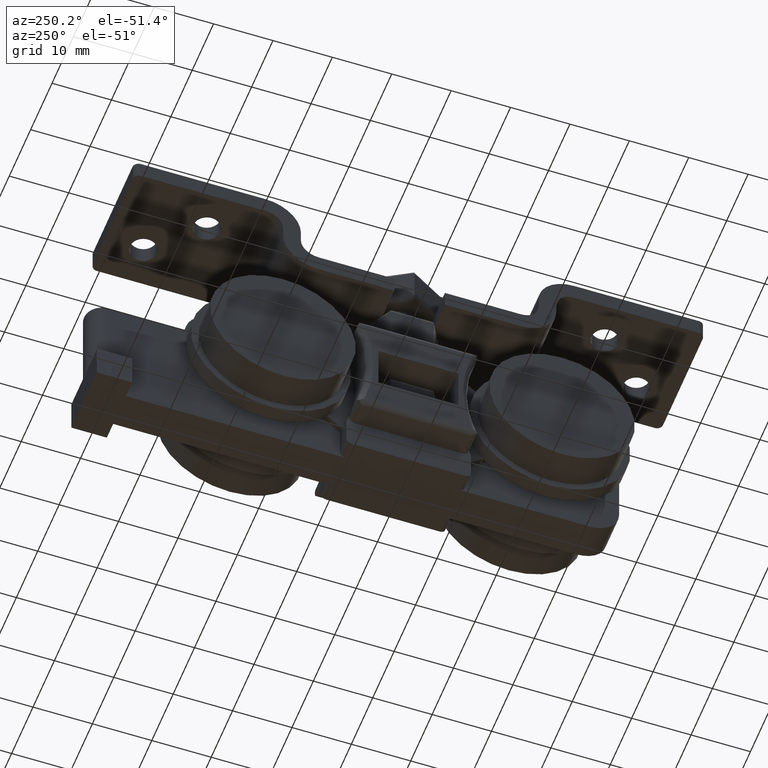
[diagram: clean part render]
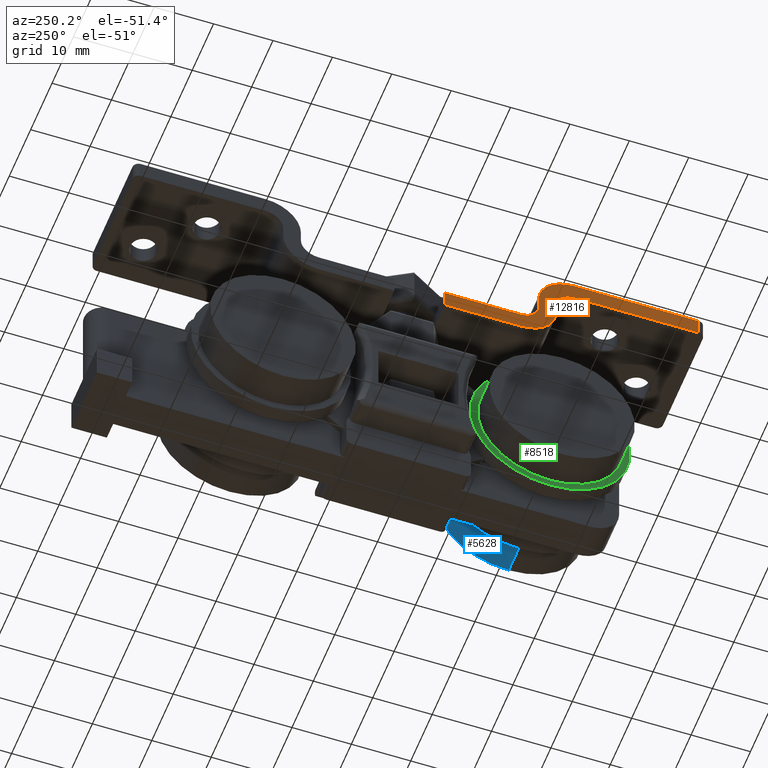
[diagram: same view with three faces highlighted in distinct colors, each labeled with its STEP entity id]
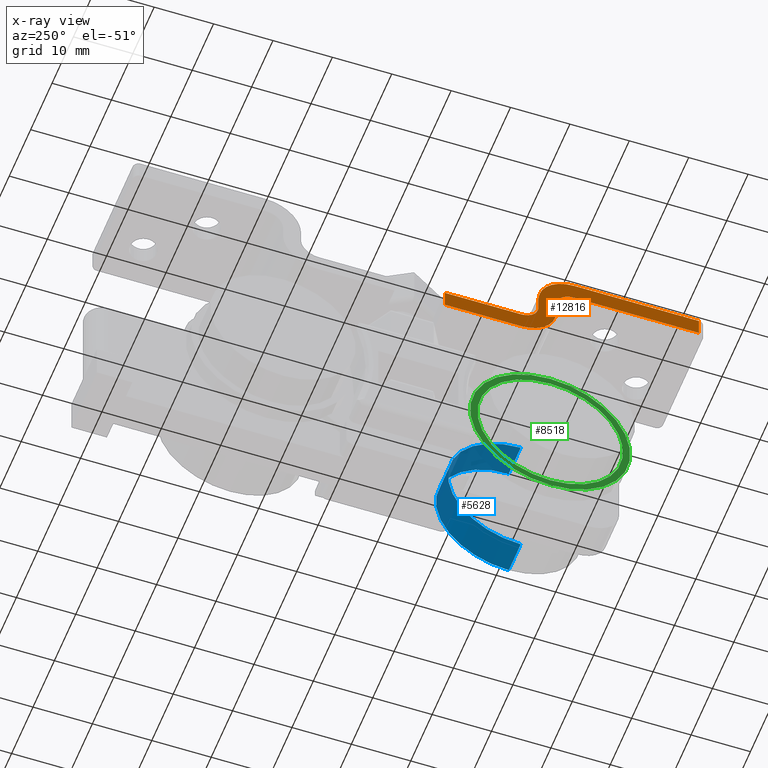
[diagram: x-ray of the same camera — body ghosted, the three highlighted faces saturated]
A machine part, auxiliary view with three faces highlighted in distinct colors.
The next image is the same camera in x-ray (body ghosted, the three faces saturated) — at least one of them is partly hidden behind the body in this view.
Their STEP definitions:

[orange] entity #12816 — the highlighted planar face has unit normal (-1, 0, 0).
#12709=CARTESIAN_POINT('',(-9.750000000000025,-2.112499999999983,51.700000000000017));
#12710=DIRECTION('',(-1.0,0.0,0.0));
#12711=DIRECTION('',(0.0,0.0,-1.0));
#12712=AXIS2_PLACEMENT_3D('',#12709,#12710,#12711);
#12713=PLANE('',#12712);
#12714=CARTESIAN_POINT('',(-9.750000000000025,-25.999999999999979,48.000000000000014));
#12715=VERTEX_POINT('',#12714);
#12716=CARTESIAN_POINT('',(-9.750000000000025,-46.999999999999979,48.000000000000014));
#12717=VERTEX_POINT('',#12716);
#12718=CARTESIAN_POINT('',(-9.750000000000025,-25.999999999999979,48.000000000000014));
#12719=DIRECTION('',(0.0,-1.0,0.0));
#12720=VECTOR('',#12719,21.0);
#12721=LINE('',#12718,#12720);
#12722=EDGE_CURVE('',#12715,#12717,#12721,.T.);
#12723=ORIENTED_EDGE('',*,*,#12722,.T.);
#12724=CARTESIAN_POINT('',(-9.750000000000025,-46.999999999999979,51.000000000000014));
#12725=VERTEX_POINT('',#12724);
#12726=CARTESIAN_POINT('',(-9.750000000000025,-46.999999999999979,48.000000000000014));
#12727=DIRECTION('',(0.0,0.0,1.0));
#12728=VECTOR('',#12727,3.0);
#12729=LINE('',#12726,#12728);
#12730=EDGE_CURVE('',#12717,#12725,#12729,.T.);
#12731=ORIENTED_EDGE('',*,*,#12730,.T.);
#12732=CARTESIAN_POINT('',(-9.750000000000025,-25.999999999999979,51.000000000000014));
#12733=VERTEX_POINT('',#12732);
#12734=CARTESIAN_POINT('',(-9.750000000000025,-25.999999999999979,51.000000000000014));
#12735=DIRECTION('',(0.0,-1.0,0.0));
#12736=VECTOR('',#12735,21.0);
#12737=LINE('',#12734,#12736);
#12738=EDGE_CURVE('',#12733,#12725,#12737,.T.);
#12739=ORIENTED_EDGE('',*,*,#12738,.F.);
#12740=CARTESIAN_POINT('',(-9.750000000000025,-19.999999999999986,45.000000000000014));
#12741=VERTEX_POINT('',#12740);
#12742=CARTESIAN_POINT('',(-9.750000000000025,-25.999999999999979,45.000000000000014));
#12743=DIRECTION('',(-1.0,0.0,-6.123234E-017));
#12744=DIRECTION('',(0.0,-1.0,0.0));
#12745=AXIS2_PLACEMENT_3D('',#12742,#12743,#12744);
#12746=CIRCLE('',#12745,5.999999999999998);
#12747=EDGE_CURVE('',#12733,#12741,#12746,.T.);
#12748=ORIENTED_EDGE('',*,*,#12747,.T.);
#12749=CARTESIAN_POINT('',(-9.750000000000025,-19.999999999999986,43.000000000000014));
#12750=VERTEX_POINT('',#12749);
#12751=CARTESIAN_POINT('',(-9.750000000000025,-19.999999999999986,45.000000000000014));
#12752=DIRECTION('',(0.0,0.0,-1.0));
#12753=VECTOR('',#12752,2.0);
#12754=LINE('',#12751,#12753);
#12755=EDGE_CURVE('',#12741,#12750,#12754,.T.);
#12756=ORIENTED_EDGE('',*,*,#12755,.T.);
#12757=CARTESIAN_POINT('',(-9.750000000000025,-16.999999999999989,40.000000000000014));
#12758=VERTEX_POINT('',#12757);
#12759=CARTESIAN_POINT('',(-9.750000000000025,-16.999999999999989,43.000000000000014));
#12760=DIRECTION('',(1.0,0.0,6.123234E-017));
#12761=DIRECTION('',(0.0,-1.0,0.0));
#12762=AXIS2_PLACEMENT_3D('',#12759,#12760,#12761);
#12763=CIRCLE('',#12762,3.000000000000002);
#12764=EDGE_CURVE('',#12750,#12758,#12763,.T.);
#12765=ORIENTED_EDGE('',*,*,#12764,.T.);
#12766=CARTESIAN_POINT('',(-9.750000000000025,-4.249999999999986,40.000000000000014));
#12767=VERTEX_POINT('',#12766);
#12768=CARTESIAN_POINT('',(-9.750000000000025,-16.999999999999989,40.000000000000014));
#12769=DIRECTION('',(0.0,1.0,0.0));
#12770=VECTOR('',#12769,12.750000000000004);
#12771=LINE('',#12768,#12770);
#12772=EDGE_CURVE('',#12758,#12767,#12771,.T.);
#12773=ORIENTED_EDGE('',*,*,#12772,.T.);
#12774=CARTESIAN_POINT('',(-9.750000000000025,-4.249999999999986,37.000000000000021));
#12775=VERTEX_POINT('',#12774);
#12776=CARTESIAN_POINT('',(-9.750000000000025,-4.249999999999986,37.000000000000021));
#12777=DIRECTION('',(0.0,0.0,1.0));
#12778=VECTOR('',#12777,2.999999999999993);
#12779=LINE('',#12776,#12778);
#12780=EDGE_CURVE('',#12775,#12767,#12779,.T.);
#12781=ORIENTED_EDGE('',*,*,#12780,.F.);
#12782=CARTESIAN_POINT('',(-9.750000000000025,-16.999999999999989,37.000000000000021));
#12783=VERTEX_POINT('',#12782);
#12784=CARTESIAN_POINT('',(-9.750000000000025,-16.999999999999989,37.000000000000021));
#12785=DIRECTION('',(0.0,1.0,0.0));
#12786=VECTOR('',#12785,12.750000000000004);
#12787=LINE('',#12784,#12786);
#12788=EDGE_CURVE('',#12783,#12775,#12787,.T.);
#12789=ORIENTED_EDGE('',*,*,#12788,.F.);
#12790=CARTESIAN_POINT('',(-9.750000000000025,-22.999999999999986,43.000000000000014));
#12791=VERTEX_POINT('',#12790);
#12792=CARTESIAN_POINT('',(-9.750000000000025,-16.999999999999989,43.000000000000014));
#12793=DIRECTION('',(1.0,0.0,6.123234E-017));
#12794=DIRECTION('',(-6.123234E-017,0.0,1.0));
#12795=AXIS2_PLACEMENT_3D('',#12792,#12793,#12794);
#12796=CIRCLE('',#12795,6.0);
#12797=EDGE_CURVE('',#12791,#12783,#12796,.T.);
#12798=ORIENTED_EDGE('',*,*,#12797,.F.);
#12799=CARTESIAN_POINT('',(-9.750000000000025,-22.999999999999986,45.000000000000014));
#12800=VERTEX_POINT('',#12799);
#12801=CARTESIAN_POINT('',(-9.750000000000025,-22.999999999999986,45.000000000000014));
#12802=DIRECTION('',(0.0,0.0,-1.0));
#12803=VECTOR('',#12802,2.0);
#12804=LINE('',#12801,#12803);
#12805=EDGE_CURVE('',#12800,#12791,#12804,.T.);
#12806=ORIENTED_EDGE('',*,*,#12805,.F.);
#12807=CARTESIAN_POINT('',(-9.750000000000025,-25.999999999999979,45.000000000000014));
#12808=DIRECTION('',(-1.0,0.0,-6.123234E-017));
#12809=DIRECTION('',(-6.123234E-017,0.0,1.0));
#12810=AXIS2_PLACEMENT_3D('',#12807,#12808,#12809);
#12811=CIRCLE('',#12810,3.0);
#12812=EDGE_CURVE('',#12715,#12800,#12811,.T.);
#12813=ORIENTED_EDGE('',*,*,#12812,.F.);
#12814=EDGE_LOOP('',(#12723,#12731,#12739,#12748,#12756,#12765,#12773,#12781,#12789,#12798,#12806,#12813));
#12815=FACE_OUTER_BOUND('',#12814,.T.);
#12816=ADVANCED_FACE('',(#12815),#12713,.T.);

[blue] entity #5628 — the highlighted cylindrical surface (partial cylindrical patch) has radius 12.25 mm, axis along (-1, 0, -0).
#5180=CARTESIAN_POINT('',(12.499999999999986,-22.999999999999986,3.750000000000000));
#5181=VERTEX_POINT('',#5180);
#5182=CARTESIAN_POINT('',(12.499999999999986,-22.999999999999986,28.250000000000000));
#5183=VERTEX_POINT('',#5182);
#5191=CARTESIAN_POINT('',(6.899999999999984,-22.999999999999986,28.250000000000000));
#5192=VERTEX_POINT('',#5191);
#5193=CARTESIAN_POINT('',(12.499999999999986,-22.999999999999986,28.250000000000000));
#5194=DIRECTION('',(-1.0,0.0,0.0));
#5195=VECTOR('',#5194,5.600000000000001);
#5196=LINE('',#5193,#5195);
#5197=EDGE_CURVE('',#5183,#5192,#5196,.T.);
#5199=CARTESIAN_POINT('',(6.899999999999984,-22.999999999999986,3.750000000000000));
#5200=VERTEX_POINT('',#5199);
#5208=CARTESIAN_POINT('',(12.499999999999986,-22.999999999999986,3.750000000000000));
#5209=DIRECTION('',(-1.0,0.0,0.0));
#5210=VECTOR('',#5209,5.600000000000001);
#5211=LINE('',#5208,#5210);
#5212=EDGE_CURVE('',#5181,#5200,#5211,.T.);
#5601=CARTESIAN_POINT('',(6.899999999999984,-22.999999999999986,16.0));
#5602=DIRECTION('',(-1.0,0.0,-6.123234E-017));
#5603=DIRECTION('',(0.0,-1.0,0.0));
#5604=AXIS2_PLACEMENT_3D('',#5601,#5602,#5603);
#5605=CIRCLE('',#5604,12.250000000000000);
#5606=EDGE_CURVE('',#5192,#5200,#5605,.T.);
#5611=CARTESIAN_POINT('',(12.500000009999987,-22.999999999999986,16.0));
#5612=DIRECTION('',(-1.0,0.0,-6.123234E-017));
#5613=DIRECTION('',(0.0,-1.0,0.0));
#5614=AXIS2_PLACEMENT_3D('',#5611,#5612,#5613);
#5615=CYLINDRICAL_SURFACE('',#5614,12.250000000000000);
#5616=ORIENTED_EDGE('',*,*,#5197,.F.);
#5617=CARTESIAN_POINT('',(12.499999999999986,-22.999999999999986,16.0));
#5618=DIRECTION('',(-1.0,0.0,-6.123234E-017));
#5619=DIRECTION('',(0.0,-1.0,0.0));
#5620=AXIS2_PLACEMENT_3D('',#5617,#5618,#5619);
#5621=CIRCLE('',#5620,12.250000000000000);
#5622=EDGE_CURVE('',#5183,#5181,#5621,.T.);
#5623=ORIENTED_EDGE('',*,*,#5622,.T.);
#5624=ORIENTED_EDGE('',*,*,#5212,.T.);
#5625=ORIENTED_EDGE('',*,*,#5606,.F.);
#5626=EDGE_LOOP('',(#5616,#5623,#5624,#5625));
#5627=FACE_OUTER_BOUND('',#5626,.T.);
#5628=ADVANCED_FACE('',(#5627),#5615,.T.);

[green] entity #8518 — the highlighted planar face has unit normal (1, 0, 0).
#8099=CARTESIAN_POINT('',(-6.900000000000027,-22.999999999999986,3.749999999999993));
#8100=VERTEX_POINT('',#8099);
#8107=CARTESIAN_POINT('',(-6.900000000000027,-22.999999999999986,28.249999999999989));
#8108=VERTEX_POINT('',#8107);
#8109=CARTESIAN_POINT('',(-6.900000000000027,-22.999999999999986,15.999999999999995));
#8110=DIRECTION('',(1.0,0.0,6.123234E-017));
#8111=DIRECTION('',(0.0,-1.0,0.0));
#8112=AXIS2_PLACEMENT_3D('',#8109,#8110,#8111);
#8113=CIRCLE('',#8112,12.250000000000000);
#8114=EDGE_CURVE('',#8108,#8100,#8113,.T.);
#8130=CARTESIAN_POINT('',(-6.900000000000031,-22.999999999999986,29.499999999999989));
#8131=VERTEX_POINT('',#8130);
#8132=CARTESIAN_POINT('',(-6.900000000000027,-22.999999999999986,2.499999999999993));
#8133=VERTEX_POINT('',#8132);
#8134=CARTESIAN_POINT('',(-6.900000000000027,-22.999999999999986,15.999999999999995));
#8135=DIRECTION('',(1.0,0.0,6.123234E-017));
#8136=DIRECTION('',(6.123234E-017,0.0,-1.0));
#8137=AXIS2_PLACEMENT_3D('',#8134,#8135,#8136);
#8138=CIRCLE('',#8137,13.500000000000000);
#8139=EDGE_CURVE('',#8131,#8133,#8138,.T.);
#8487=CARTESIAN_POINT('',(-6.900000000000027,-22.999999999999986,15.999999999999995));
#8488=DIRECTION('',(1.0,0.0,6.123234E-017));
#8489=DIRECTION('',(6.123234E-017,0.0,-1.0));
#8490=AXIS2_PLACEMENT_3D('',#8487,#8488,#8489);
#8491=CIRCLE('',#8490,13.500000000000000);
#8492=EDGE_CURVE('',#8133,#8131,#8491,.T.);
#8499=CARTESIAN_POINT('',(-6.900000000000027,-8.149999999999984,1.149999999999994));
#8500=DIRECTION('',(1.0,0.0,0.0));
#8501=DIRECTION('',(0.0,0.0,1.0));
#8502=AXIS2_PLACEMENT_3D('',#8499,#8500,#8501);
#8503=PLANE('',#8502);
#8504=ORIENTED_EDGE('',*,*,#8139,.F.);
#8505=ORIENTED_EDGE('',*,*,#8492,.F.);
#8506=EDGE_LOOP('',(#8504,#8505));
#8507=FACE_OUTER_BOUND('',#8506,.T.);
#8508=ORIENTED_EDGE('',*,*,#8114,.T.);
#8509=CARTESIAN_POINT('',(-6.900000000000027,-22.999999999999986,15.999999999999995));
#8510=DIRECTION('',(1.0,0.0,6.123234E-017));
#8511=DIRECTION('',(0.0,-1.0,0.0));
#8512=AXIS2_PLACEMENT_3D('',#8509,#8510,#8511);
#8513=CIRCLE('',#8512,12.250000000000000);
#8514=EDGE_CURVE('',#8100,#8108,#8513,.T.);
#8515=ORIENTED_EDGE('',*,*,#8514,.T.);
#8516=EDGE_LOOP('',(#8508,#8515));
#8517=FACE_BOUND('',#8516,.T.);
#8518=ADVANCED_FACE('',(#8507,#8517),#8503,.F.);